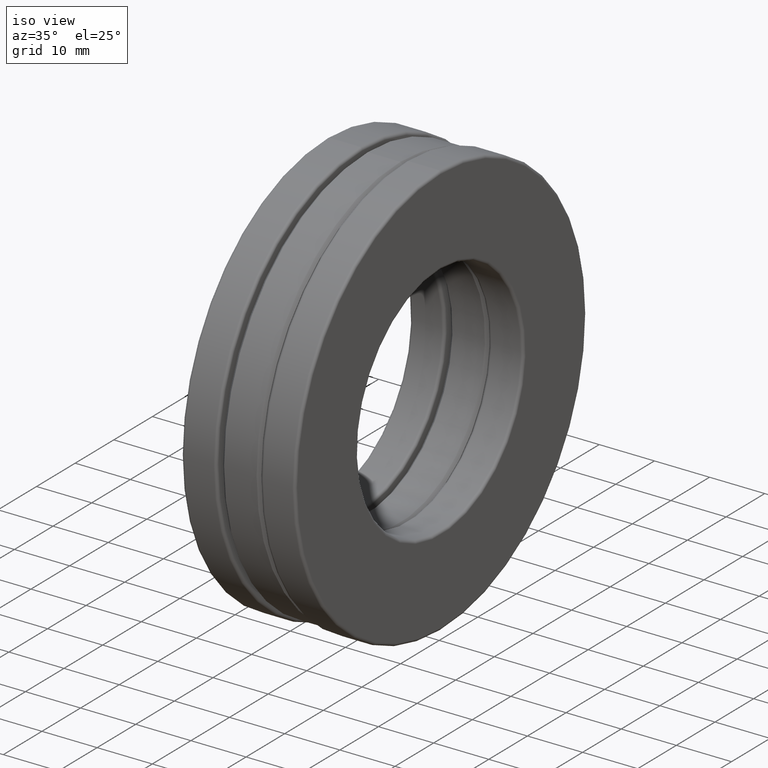
[diagram: clean part render]
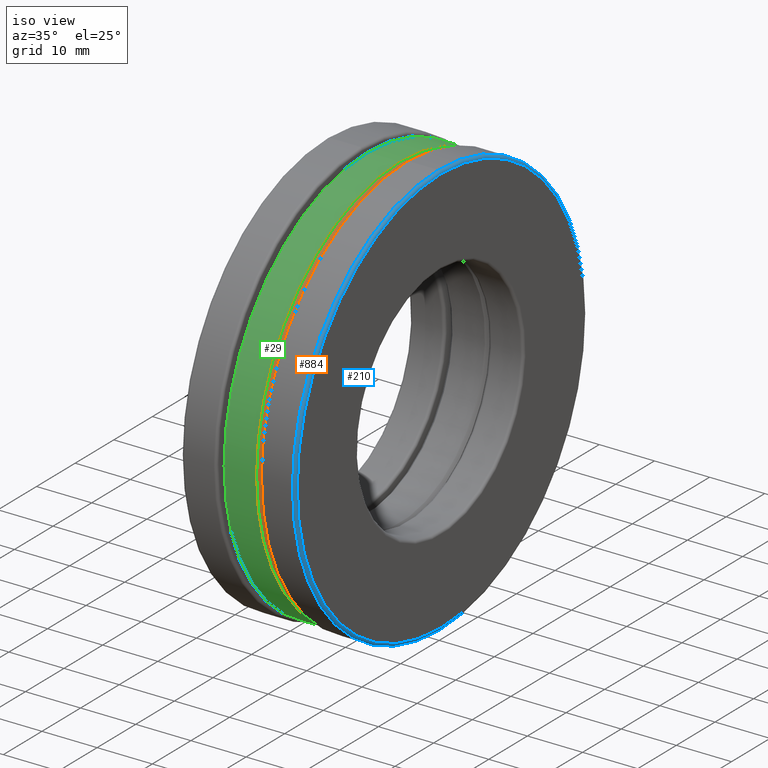
[diagram: same view with three faces highlighted in distinct colors, each labeled with its STEP entity id]
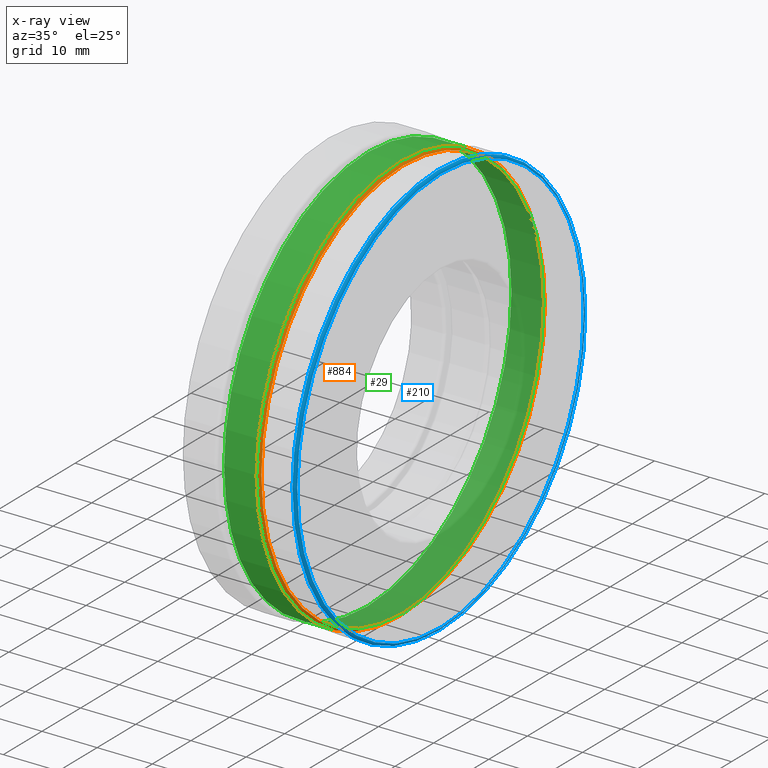
[diagram: x-ray of the same camera — body ghosted, the three highlighted faces saturated]
A machine part, iso view with three faces highlighted in distinct colors.
The next image is the same camera in x-ray (body ghosted, the three faces saturated) — at least one of them is partly hidden behind the body in this view.
Their STEP definitions:

[orange] entity #884 — the highlighted conical surface has half-angle 45 deg.
#46 = CARTESIAN_POINT ( 'NONE',  ( 0.1159999999999999800, 0.0000000000000000000, 1.464374999999999800 ) ) ;
#261 = VERTEX_POINT ( 'NONE', #46 ) ;
#338 = CONICAL_SURFACE ( 'NONE', #474, 1.464374999999999800, 0.7853981633974500600 ) ;
#372 = EDGE_LOOP ( 'NONE', ( #692 ) ) ;
#373 = EDGE_CURVE ( 'NONE', #261, #261, #907, .T. ) ;
#393 = VERTEX_POINT ( 'NONE', #1444 ) ;
#474 = AXIS2_PLACEMENT_3D ( 'NONE', #665, #1018, #784 ) ;
#597 = AXIS2_PLACEMENT_3D ( 'NONE', #1239, #1125, #668 ) ;
#659 = AXIS2_PLACEMENT_3D ( 'NONE', #1092, #1009, #1197 ) ;
#665 = CARTESIAN_POINT ( 'NONE',  ( 0.1159999999999999800, 0.0000000000000000000, 0.0000000000000000000 ) ) ;
#668 = DIRECTION ( 'NONE',  ( 0.0000000000000000000, 0.0000000000000000000, 1.000000000000000000 ) ) ;
#692 = ORIENTED_EDGE ( 'NONE', *, *, #373, .F. ) ;
#717 = FACE_OUTER_BOUND ( 'NONE', #372, .T. ) ;
#784 = DIRECTION ( 'NONE',  ( 0.0000000000000000000, 0.0000000000000000000, 1.000000000000000000 ) ) ;
#853 = EDGE_LOOP ( 'NONE', ( #1431 ) ) ;
#884 = ADVANCED_FACE ( 'NONE', ( #1061, #717 ), #338, .T. ) ;
#907 = CIRCLE ( 'NONE', #597, 1.464374999999999800 ) ;
#1009 = DIRECTION ( 'NONE',  ( -1.000000000000000000, -0.0000000000000000000, -0.0000000000000000000 ) ) ;
#1018 = DIRECTION ( 'NONE',  ( -1.000000000000000000, -0.0000000000000000000, -0.0000000000000000000 ) ) ;
#1060 = EDGE_CURVE ( 'NONE', #393, #393, #1247, .T. ) ;
#1061 = FACE_BOUND ( 'NONE', #853, .T. ) ;
#1092 = CARTESIAN_POINT ( 'NONE',  ( 0.1359999999999999500, 0.0000000000000000000, 0.0000000000000000000 ) ) ;
#1125 = DIRECTION ( 'NONE',  ( -1.000000000000000000, -0.0000000000000000000, -0.0000000000000000000 ) ) ;
#1197 = DIRECTION ( 'NONE',  ( 0.0000000000000000000, 0.0000000000000000000, 1.000000000000000000 ) ) ;
#1239 = CARTESIAN_POINT ( 'NONE',  ( 0.1159999999999999800, 0.0000000000000000000, 0.0000000000000000000 ) ) ;
#1247 = CIRCLE ( 'NONE', #659, 1.444374999999999700 ) ;
#1431 = ORIENTED_EDGE ( 'NONE', *, *, #1060, .T. ) ;
#1444 = CARTESIAN_POINT ( 'NONE',  ( 0.1359999999999999500, 0.0000000000000000000, 1.444374999999999700 ) ) ;

[blue] entity #210 — the highlighted toroidal blend (fillet) surface has major radius 37.1951 mm and minor (blend) radius 0.508 mm.
#70 = CARTESIAN_POINT ( 'NONE',  ( 0.3860000000000001800, 0.0000000000000000000, 0.0000000000000000000 ) ) ;
#172 = CARTESIAN_POINT ( 'NONE',  ( 0.3860000000000001800, 0.0000000000000000000, 1.484375000000000000 ) ) ;
#210 = ADVANCED_FACE ( 'NONE', ( #1471, #289 ), #825, .T. ) ;
#255 = EDGE_LOOP ( 'NONE', ( #340 ) ) ;
#289 = FACE_OUTER_BOUND ( 'NONE', #495, .T. ) ;
#301 = DIRECTION ( 'NONE',  ( -1.000000000000000000, -0.0000000000000000000, -0.0000000000000000000 ) ) ;
#324 = CARTESIAN_POINT ( 'NONE',  ( 0.3860000000000001800, 0.0000000000000000000, 0.0000000000000000000 ) ) ;
#340 = ORIENTED_EDGE ( 'NONE', *, *, #1023, .F. ) ;
#374 = AXIS2_PLACEMENT_3D ( 'NONE', #324, #301, #637 ) ;
#395 = DIRECTION ( 'NONE',  ( -1.000000000000000000, -0.0000000000000000000, -0.0000000000000000000 ) ) ;
#495 = EDGE_LOOP ( 'NONE', ( #1138 ) ) ;
#513 = AXIS2_PLACEMENT_3D ( 'NONE', #70, #395, #866 ) ;
#570 = EDGE_CURVE ( 'NONE', #1265, #1265, #1078, .T. ) ;
#637 = DIRECTION ( 'NONE',  ( 0.0000000000000000000, 0.0000000000000000000, 1.000000000000000000 ) ) ;
#719 = DIRECTION ( 'NONE',  ( 0.0000000000000000000, 0.0000000000000000000, 1.000000000000000000 ) ) ;
#762 = CARTESIAN_POINT ( 'NONE',  ( 0.4060000000000001400, 0.0000000000000000000, 1.464375000000000400 ) ) ;
#814 = CARTESIAN_POINT ( 'NONE',  ( 0.4060000000000001400, 0.0000000000000000000, 0.0000000000000000000 ) ) ;
#825 = TOROIDAL_SURFACE ( 'NONE', #513, 1.464375000000000400, 0.01999999999999971900 ) ;
#829 = CIRCLE ( 'NONE', #374, 1.484375000000000000 ) ;
#866 = DIRECTION ( 'NONE',  ( 0.0000000000000000000, 0.0000000000000000000, 1.000000000000000000 ) ) ;
#960 = DIRECTION ( 'NONE',  ( -1.000000000000000000, -0.0000000000000000000, -0.0000000000000000000 ) ) ;
#998 = VERTEX_POINT ( 'NONE', #172 ) ;
#1023 = EDGE_CURVE ( 'NONE', #998, #998, #829, .T. ) ;
#1078 = CIRCLE ( 'NONE', #1122, 1.464375000000000400 ) ;
#1122 = AXIS2_PLACEMENT_3D ( 'NONE', #814, #960, #719 ) ;
#1138 = ORIENTED_EDGE ( 'NONE', *, *, #570, .T. ) ;
#1265 = VERTEX_POINT ( 'NONE', #762 ) ;
#1471 = FACE_OUTER_BOUND ( 'NONE', #255, .T. ) ;

[green] entity #29 — the highlighted cylindrical surface (bore or boss wall) has radius 37.1951 mm, axis along (-1, -0, -0).
#29 = ADVANCED_FACE ( 'NONE', ( #711, #1301 ), #67, .T. ) ;
#46 = CARTESIAN_POINT ( 'NONE',  ( 0.1159999999999999800, 0.0000000000000000000, 1.464374999999999800 ) ) ;
#67 = CYLINDRICAL_SURFACE ( 'NONE', #141, 1.464374999999999800 ) ;
#102 = ORIENTED_EDGE ( 'NONE', *, *, #373, .T. ) ;
#141 = AXIS2_PLACEMENT_3D ( 'NONE', #1152, #1379, #478 ) ;
#179 = DIRECTION ( 'NONE',  ( -1.000000000000000000, -0.0000000000000000000, -0.0000000000000000000 ) ) ;
#261 = VERTEX_POINT ( 'NONE', #46 ) ;
#373 = EDGE_CURVE ( 'NONE', #261, #261, #907, .T. ) ;
#391 = CARTESIAN_POINT ( 'NONE',  ( -0.1160000000000000300, 0.0000000000000000000, 0.0000000000000000000 ) ) ;
#428 = AXIS2_PLACEMENT_3D ( 'NONE', #391, #179, #750 ) ;
#478 = DIRECTION ( 'NONE',  ( 0.0000000000000000000, 0.0000000000000000000, 1.000000000000000000 ) ) ;
#597 = AXIS2_PLACEMENT_3D ( 'NONE', #1239, #1125, #668 ) ;
#668 = DIRECTION ( 'NONE',  ( 0.0000000000000000000, 0.0000000000000000000, 1.000000000000000000 ) ) ;
#687 = VERTEX_POINT ( 'NONE', #1109 ) ;
#711 = FACE_OUTER_BOUND ( 'NONE', #787, .T. ) ;
#750 = DIRECTION ( 'NONE',  ( 0.0000000000000000000, 0.0000000000000000000, 1.000000000000000000 ) ) ;
#787 = EDGE_LOOP ( 'NONE', ( #102 ) ) ;
#907 = CIRCLE ( 'NONE', #597, 1.464374999999999800 ) ;
#1032 = CIRCLE ( 'NONE', #428, 1.464374999999999800 ) ;
#1109 = CARTESIAN_POINT ( 'NONE',  ( -0.1160000000000000300, 0.0000000000000000000, 1.464374999999999800 ) ) ;
#1125 = DIRECTION ( 'NONE',  ( -1.000000000000000000, -0.0000000000000000000, -0.0000000000000000000 ) ) ;
#1152 = CARTESIAN_POINT ( 'NONE',  ( 0.0000000000000000000, 0.0000000000000000000, 0.0000000000000000000 ) ) ;
#1239 = CARTESIAN_POINT ( 'NONE',  ( 0.1159999999999999800, 0.0000000000000000000, 0.0000000000000000000 ) ) ;
#1301 = FACE_OUTER_BOUND ( 'NONE', #1331, .T. ) ;
#1320 = ORIENTED_EDGE ( 'NONE', *, *, #1343, .F. ) ;
#1331 = EDGE_LOOP ( 'NONE', ( #1320 ) ) ;
#1343 = EDGE_CURVE ( 'NONE', #687, #687, #1032, .T. ) ;
#1379 = DIRECTION ( 'NONE',  ( -1.000000000000000000, -0.0000000000000000000, -0.0000000000000000000 ) ) ;